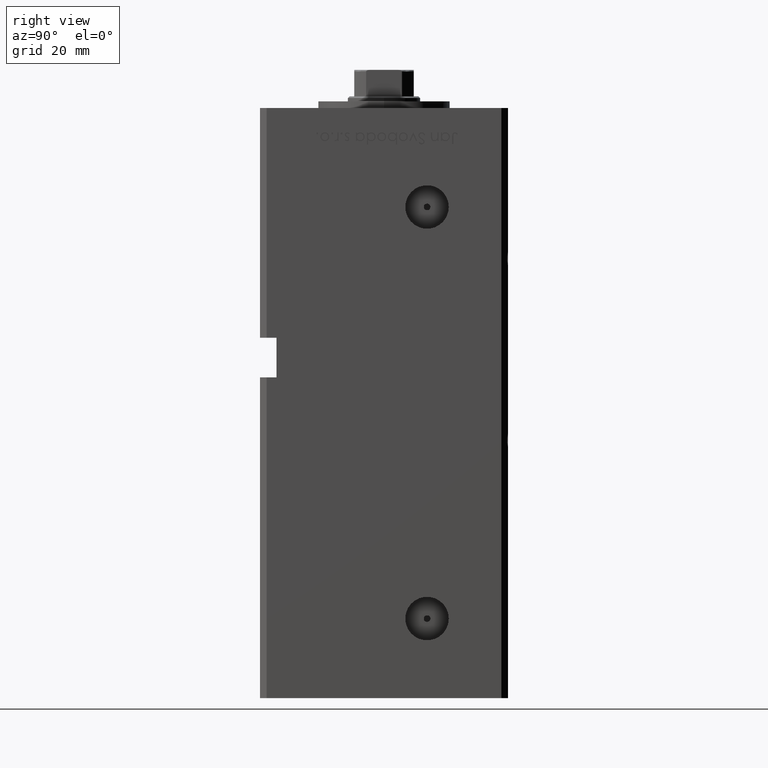
[diagram: clean part render]
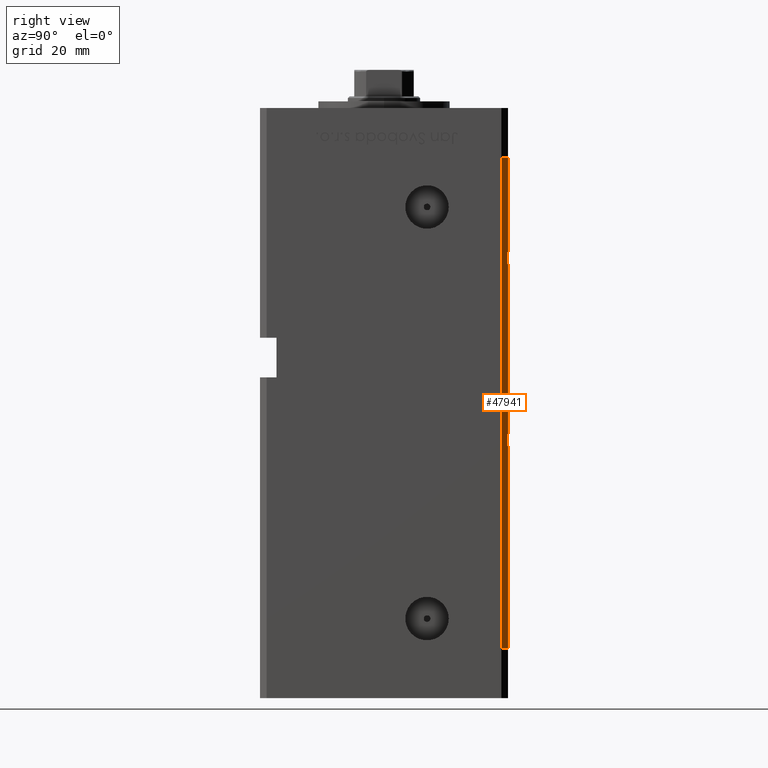
[diagram: same view with one face highlighted and labeled with its STEP entity id]
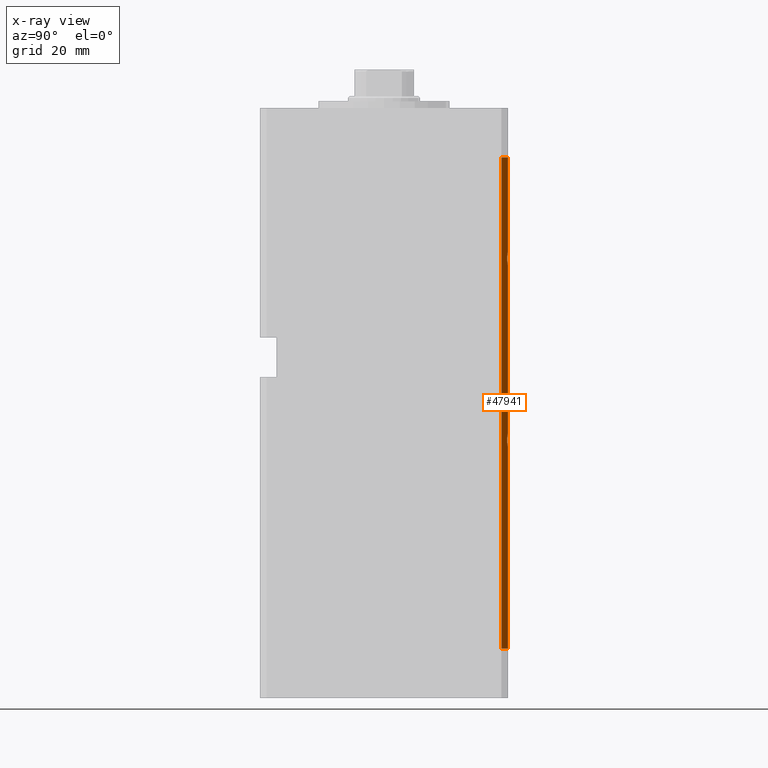
[diagram: x-ray of the same camera — body ghosted, the highlighted face saturated]
A machine part, right view. The second image highlights one B-rep face of the part: STEP entity #47941.
The next image is the same camera in x-ray: the body ghosted, the highlighted face saturated — about 0% of this face is hidden behind the body in this view.
In plain terms, the highlighted planar face has unit normal (0.7071, 0.7071, 0).
Its self-contained STEP definition (entity closure, byte-faithful):
#222 = ORIENTED_EDGE ( 'NONE', *, *, #50801, .T. ) ;
#359 = VERTEX_POINT ( 'NONE', #25395 ) ;
#577 = DIRECTION ( 'NONE',  ( 0.7071067811865451302, 0.7071067811865500152, -0.000000000000000000 ) ) ;
#810 = EDGE_CURVE ( 'NONE', #14772, #21970, #22828, .T. ) ;
#1881 = LINE ( 'NONE', #43253, #20189 ) ;
#2303 = DIRECTION ( 'NONE',  ( -0.000000000000000000, -0.000000000000000000, -1.000000000000000000 ) ) ;
#3115 = DIRECTION ( 'NONE',  ( -0.000000000000000000, -0.000000000000000000, -1.000000000000000000 ) ) ;
#4362 = CARTESIAN_POINT ( 'NONE',  ( 40.50000000000000711, 37.50000000000000000, 0.000000000000000000 ) ) ;
#4592 = LINE ( 'NONE', #23943, #42418 ) ;
#4649 = AXIS2_PLACEMENT_3D ( 'NONE', #17774, #577, #34145 ) ;
#5316 = EDGE_CURVE ( 'NONE', #51022, #14772, #22742, .T. ) ;
#5968 = EDGE_LOOP ( 'NONE', ( #42098, #40523, #51040, #25277, #35914, #222, #44671, #38143 ) ) ;
#6724 = DIRECTION ( 'NONE',  ( -0.000000000000000000, -0.000000000000000000, -1.000000000000000000 ) ) ;
#6860 = CARTESIAN_POINT ( 'NONE',  ( 40.50000000000000711, 37.50000000000000000, 65.01556443707460176 ) ) ;
#8414 = CARTESIAN_POINT ( 'NONE',  ( 40.50000000000000711, 37.50000000000000000, 60.98443556292540535 ) ) ;
#9202 = CARTESIAN_POINT ( 'NONE',  ( 40.50000000000000711, 37.50000000000000000, 148.5000000000000000 ) ) ;
#10159 = DIRECTION ( 'NONE',  ( 0.7071067811865500152, -0.7071067811865451302, 0.000000000000000000 ) ) ;
#10513 = VECTOR ( 'NONE', #3115, 1000.000000000000000 ) ;
#12934 = EDGE_CURVE ( 'NONE', #21970, #49768, #4592, .T. ) ;
#13094 = VERTEX_POINT ( 'NONE', #39400 ) ;
#14034 = CARTESIAN_POINT ( 'NONE',  ( 40.83505154639176737, 37.16494845360823973, 117.3142925110983015 ) ) ;
#14772 = VERTEX_POINT ( 'NONE', #6860 ) ;
#16699 = DIRECTION ( 'NONE',  ( -0.000000000000000000, -0.000000000000000000, -1.000000000000000000 ) ) ;
#16922 = CARTESIAN_POINT ( 'NONE',  ( 40.50000000000000711, 37.50000000000000000, 115.9844355629253272 ) ) ;
#17774 = CARTESIAN_POINT ( 'NONE',  ( 40.50000000000000711, 37.50000000000000000, 148.5000000000000000 ) ) ;
#19188 = VERTEX_POINT ( 'NONE', #49837 ) ;
#20112 = CARTESIAN_POINT ( 'NONE',  ( 40.50000000000000711, 37.50000000000000000, 65.01556443707460176 ) ) ;
#20184 = VERTEX_POINT ( 'NONE', #22432 ) ;
#20189 = VECTOR ( 'NONE', #6724, 1000.000000000000000 ) ;
#21970 = VERTEX_POINT ( 'NONE', #8414 ) ;
#22337 = CARTESIAN_POINT ( 'NONE',  ( 40.50000000000000711, 37.50000000000000000, 120.0155644370746586 ) ) ;
#22432 = CARTESIAN_POINT ( 'NONE',  ( 40.50000000000000711, 37.50000000000000000, 120.0155644370746586 ) ) ;
#22742 = LINE ( 'NONE', #31848, #10513 ) ;
#22828 =( BOUNDED_CURVE ( )  B_SPLINE_CURVE ( 3, ( #20112, #28441, #28708, #36218 ),
 .UNSPECIFIED., .F., .F. ) 
 B_SPLINE_CURVE_WITH_KNOTS ( ( 4, 4 ),
 ( 2.894783720120225556, 3.388401587059360676 ),
 .UNSPECIFIED. ) 
 CURVE ( )  GEOMETRIC_REPRESENTATION_ITEM ( )  RATIONAL_B_SPLINE_CURVE ( ( 1.000000000000000000, 0.9797979797979806671, 0.9797979797979806671, 1.000000000000000000 ) ) 
 REPRESENTATION_ITEM ( '' )  );
#23943 = CARTESIAN_POINT ( 'NONE',  ( 40.50000000000000711, 37.50000000000000000, 148.5000000000000000 ) ) ;
#25277 = ORIENTED_EDGE ( 'NONE', *, *, #28438, .F. ) ;
#25395 = CARTESIAN_POINT ( 'NONE',  ( 42.50000000000001421, 35.50000000000000711, 148.5000000000000000 ) ) ;
#25816 = FACE_OUTER_BOUND ( 'NONE', #5968, .T. ) ;
#26079 = PLANE ( 'NONE',  #4649 ) ;
#26225 = LINE ( 'NONE', #42607, #41084 ) ;
#28438 = EDGE_CURVE ( 'NONE', #13094, #20184, #26225, .T. ) ;
#28441 = CARTESIAN_POINT ( 'NONE',  ( 40.83505154639174606, 37.16494845360826105, 63.68570748890166300 ) ) ;
#28708 = CARTESIAN_POINT ( 'NONE',  ( 40.83505154639174606, 37.16494845360825394, 62.31429251109832990 ) ) ;
#30137 = VECTOR ( 'NONE', #46247, 1000.000000000000114 ) ;
#30407 = CARTESIAN_POINT ( 'NONE',  ( 40.50000000000000711, 37.50000000000000000, 115.9844355629253272 ) ) ;
#30572 = LINE ( 'NONE', #46949, #37410 ) ;
#31686 = EDGE_CURVE ( 'NONE', #13094, #359, #34418, .T. ) ;
#31848 = CARTESIAN_POINT ( 'NONE',  ( 40.50000000000000711, 37.50000000000000000, 148.5000000000000000 ) ) ;
#34145 = DIRECTION ( 'NONE',  ( -0.7071067811865500152, 0.7071067811865451302, 0.000000000000000000 ) ) ;
#34418 = LINE ( 'NONE', #9202, #30137 ) ;
#35914 = ORIENTED_EDGE ( 'NONE', *, *, #31686, .T. ) ;
#36218 = CARTESIAN_POINT ( 'NONE',  ( 40.50000000000000711, 37.50000000000000000, 60.98443556292540535 ) ) ;
#37410 = VECTOR ( 'NONE', #10159, 1000.000000000000114 ) ;
#37574 =( BOUNDED_CURVE ( )  B_SPLINE_CURVE ( 3, ( #22337, #46786, #14034, #30407 ),
 .UNSPECIFIED., .F., .F. ) 
 B_SPLINE_CURVE_WITH_KNOTS ( ( 4, 4 ),
 ( 2.894783720120217119, 3.388401587059369113 ),
 .UNSPECIFIED. ) 
 CURVE ( )  GEOMETRIC_REPRESENTATION_ITEM ( )  RATIONAL_B_SPLINE_CURVE ( ( 1.000000000000000000, 0.9797979797979792238, 0.9797979797979792238, 1.000000000000000000 ) ) 
 REPRESENTATION_ITEM ( '' )  );
#38143 = ORIENTED_EDGE ( 'NONE', *, *, #12934, .F. ) ;
#39400 = CARTESIAN_POINT ( 'NONE',  ( 40.50000000000000711, 37.50000000000000000, 148.5000000000000000 ) ) ;
#40523 = ORIENTED_EDGE ( 'NONE', *, *, #5316, .F. ) ;
#41084 = VECTOR ( 'NONE', #2303, 1000.000000000000000 ) ;
#42098 = ORIENTED_EDGE ( 'NONE', *, *, #810, .F. ) ;
#42418 = VECTOR ( 'NONE', #16699, 1000.000000000000000 ) ;
#42607 = CARTESIAN_POINT ( 'NONE',  ( 40.50000000000000711, 37.50000000000000000, 148.5000000000000000 ) ) ;
#43253 = CARTESIAN_POINT ( 'NONE',  ( 42.50000000000001421, 35.50000000000000711, 148.5000000000000000 ) ) ;
#44671 = ORIENTED_EDGE ( 'NONE', *, *, #53102, .F. ) ;
#46247 = DIRECTION ( 'NONE',  ( 0.7071067811865500152, -0.7071067811865451302, 0.000000000000000000 ) ) ;
#46786 = CARTESIAN_POINT ( 'NONE',  ( 40.83505154639176737, 37.16494845360823973, 118.6857074889016843 ) ) ;
#46949 = CARTESIAN_POINT ( 'NONE',  ( 40.50000000000000711, 37.50000000000000000, 0.000000000000000000 ) ) ;
#47941 = ADVANCED_FACE ( 'NONE', ( #25816 ), #26079, .T. ) ;
#49768 = VERTEX_POINT ( 'NONE', #4362 ) ;
#49837 = CARTESIAN_POINT ( 'NONE',  ( 42.50000000000001421, 35.50000000000000711, 0.000000000000000000 ) ) ;
#50001 = EDGE_CURVE ( 'NONE', #20184, #51022, #37574, .T. ) ;
#50801 = EDGE_CURVE ( 'NONE', #359, #19188, #1881, .T. ) ;
#51022 = VERTEX_POINT ( 'NONE', #16922 ) ;
#51040 = ORIENTED_EDGE ( 'NONE', *, *, #50001, .F. ) ;
#53102 = EDGE_CURVE ( 'NONE', #49768, #19188, #30572, .T. ) ;